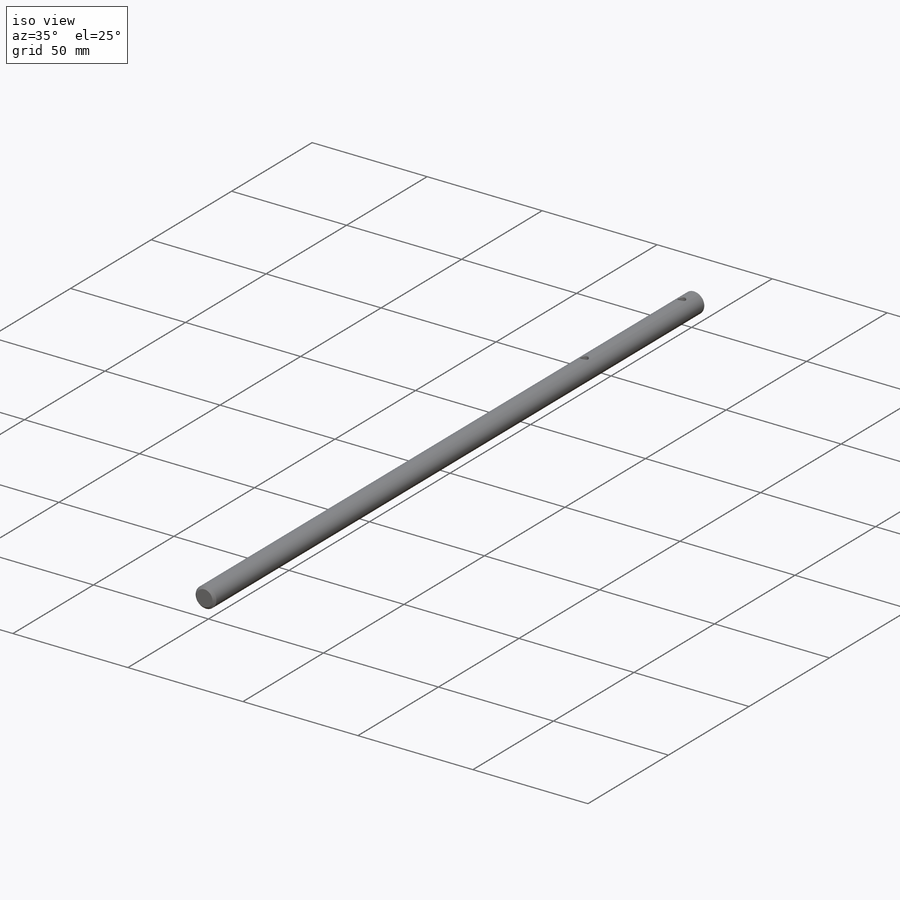
[diagram: iso view]
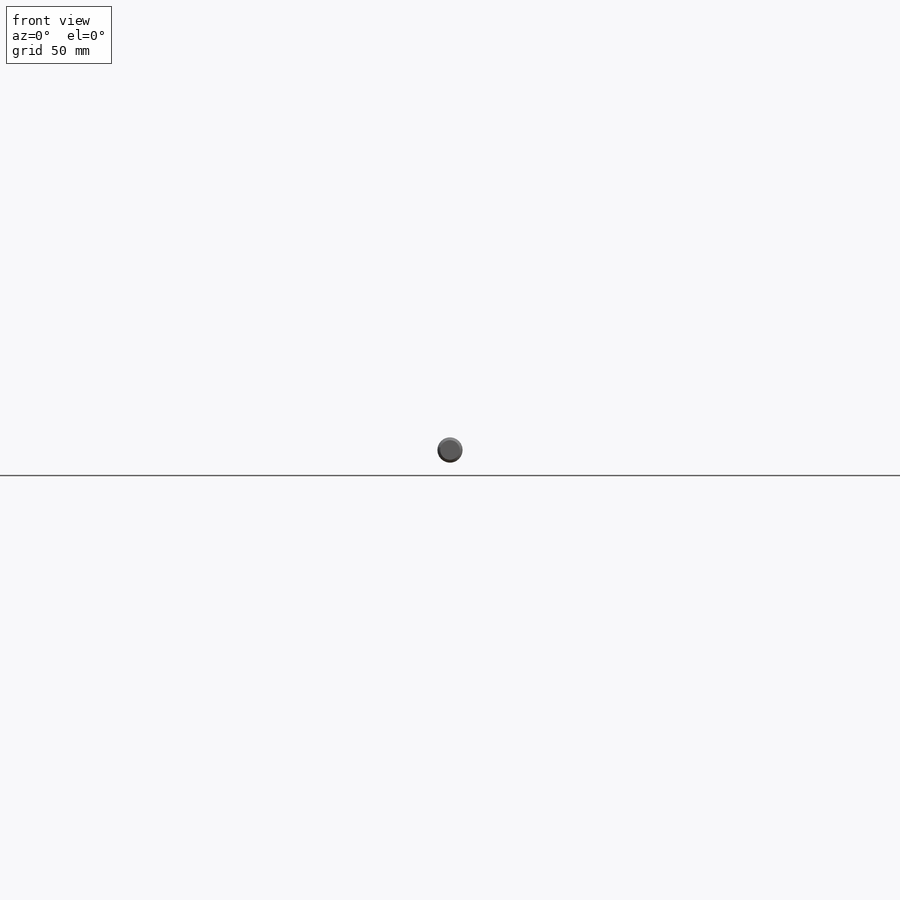
[diagram: front view]
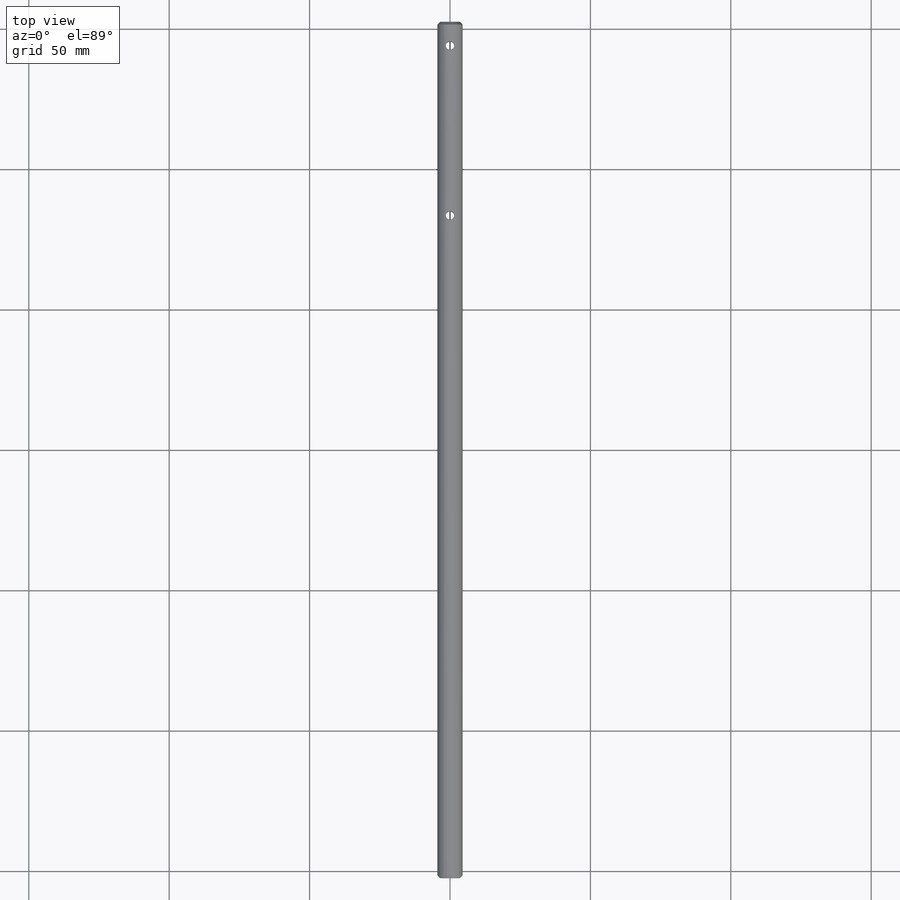
[diagram: top view]
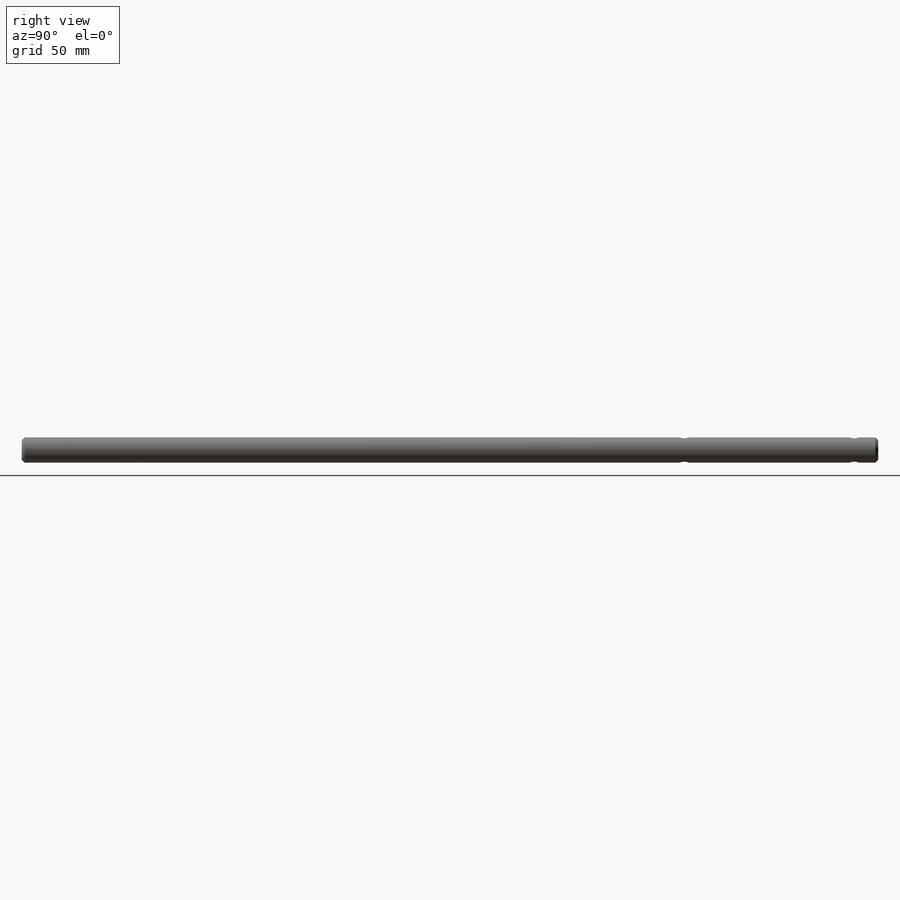
[diagram: right view]
SOLIDWORKS PART (.sldprt)
format: sldprt  version: not decoded by parser v0  size: 195,072 bytes
history: native  units: mm
features: plane x3, sketch x2, chamfer x2, material x1, extrude x1, cut_extrude x1 (+13 scaffold rows collapsed)
feature tree (23):
  scaffold x13  (default folders/planes/origin — collapsed)
  material  "Латунь"
  plane  "Спереди"
  plane  "Сверху"
  plane  "Справа"
  sketch  "Эскиз2"  dims[D1=9.0mm]
  extrude  "Бобышка-Вытянуть1"  Depth=305mm
  chamfer  "Фаска1"  Distance=1mm Angle=45deg
  sketch  "Эскиз3"  dims[D1=3.0mm D2=8.5mm D3=69.0mm]
  cut_extrude  "Вырез-Вытянуть1"  Depth=10mm
  chamfer  "Фаска2"  Distance=0.25mm Angle=45deg
decode coverage: 6 of 6 modeling features carry decoded parameters
note: suppression state not decoded; provenance and decode notes live in map.json
